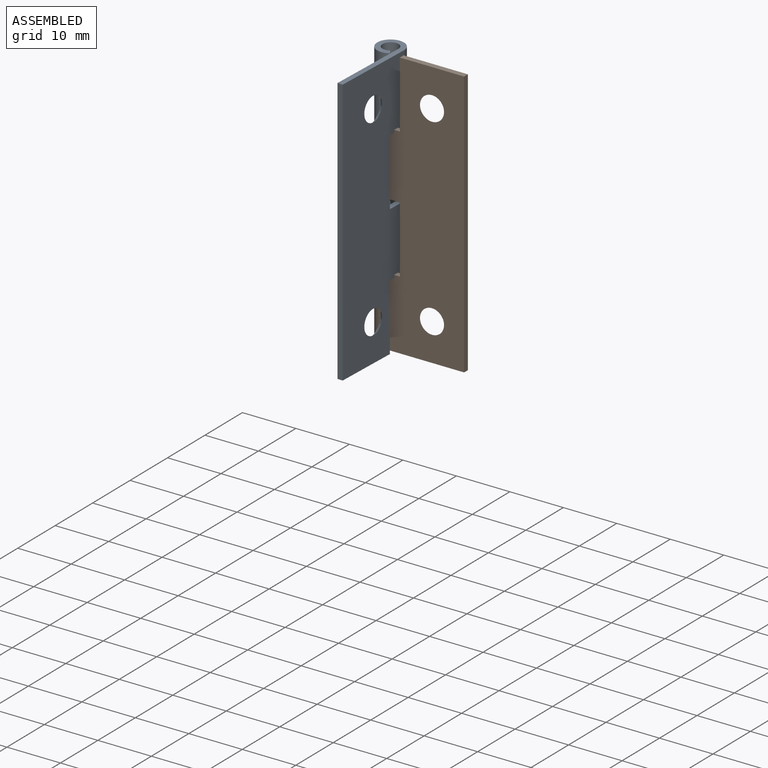
[diagram: assembled view]
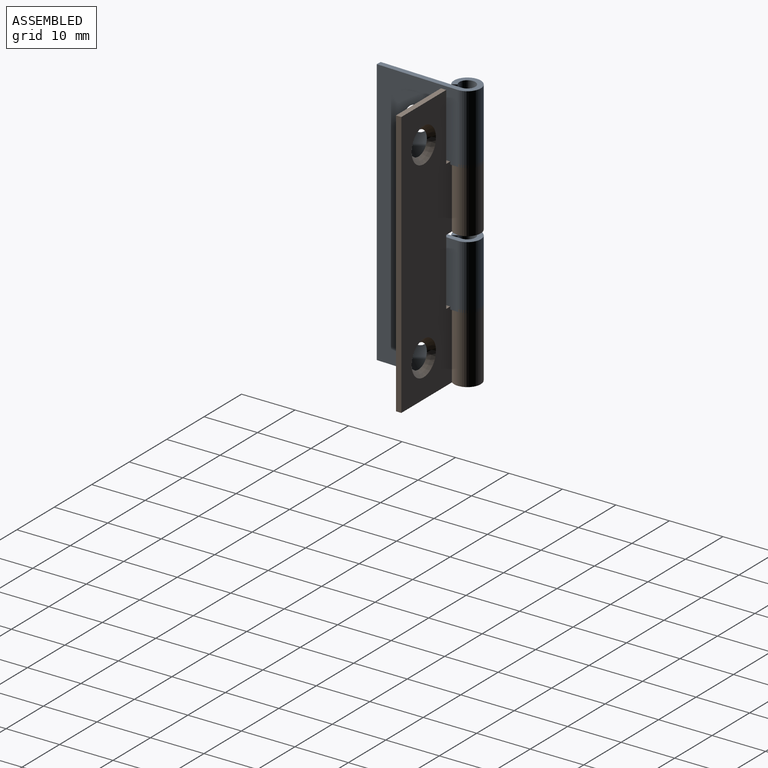
[diagram: assembled view, second angle]
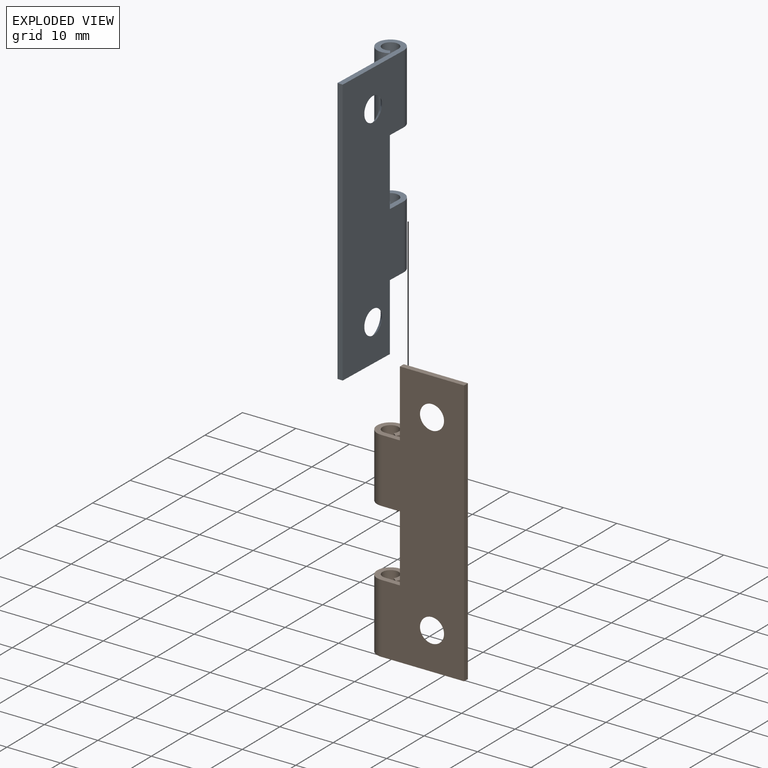
[diagram: exploded view]
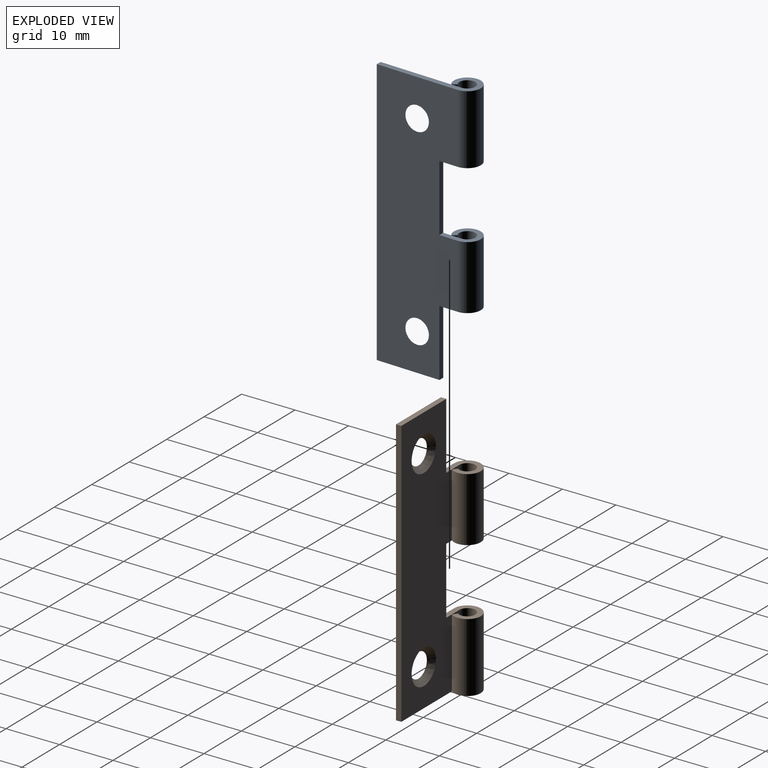
[diagram: exploded view, second angle]
ASSEMBLY  parts=2 mates=2
PART A: 18 faces, bbox 18x5x50 mm
  f0: cylinder r=1.5mm len=12mm, axis (0,0,-1), area 96.2mm2, adj f2,f7,f13,f14
  f1: cylinder r=1.5mm len=13mm, axis (0,0,-1), area 104.2mm2, adj f3,f7,f9,f11
  f2: plane 12x0.81mm, normal (-0.59,0.81,0), area 12mm2, adj f0,f4,f13,f14
  f3: plane 13x0.81mm, normal (-0.59,0.81,0), area 13mm2, adj f1,f5,f9,f11
  f4: cylinder r=2.5mm len=12mm, axis (0,0,-1), area 160.4mm2, adj f2,f6,f13,f14
  f5: cylinder r=2.5mm len=13mm, axis (0,0,-1), area 173.7mm2, adj f3,f6,f9,f11
  f6: plane 50x15.5mm, normal (0,1,0), area 655.7mm2, adj f4,f5,f8,f9,f10,f11,f12,f13
  f7: plane 50x15.5mm, normal (0,-1,0), area 621.1mm2, adj f0,f1,f8,f9,f10,f11,f12,f13
  f8: plane 50x1mm, normal (1,0,0), area 50mm2, adj f6,f7,f9,f10
  f9: plane 18x5mm, normal (0,0,1), area 26.2mm2, adj f1,f3,f5,f6,f7,f8
  f10: plane 12x1mm, normal (0,0,-1), area 12mm2, adj f6,f7,f8,f15
  f11: plane 6x5mm, normal (0,0,-1), area 14.2mm2, adj f1,f3,f5,f6,f7,f12
  f12: plane 12.5x1mm, normal (-1,0,0), area 12.5mm2, adj f6,f7,f11,f13
  f13: plane 6x5mm, normal (0,0,1), area 14.2mm2, adj f0,f2,f4,f6,f7,f12
  f14: plane 6x5mm, normal (0,0,-1), area 14.2mm2, adj f0,f2,f4,f6,f7,f15
  f15: plane 12.5x1mm, normal (-1,0,0), area 12.5mm2, adj f6,f7,f10,f14
  f16: cone r=2.25mm half-angle=45deg, axis (0,-1,0), area 24.4mm2, adj f6,f7
  f17: cone r=2.25mm half-angle=45deg, axis (0,-1,0), area 24.4mm2, adj f6,f7
PART B: 18 faces, bbox 18x5x50 mm
  f0: cylinder r=1.5mm len=12mm, axis (0,0,-1), area 96.2mm2, adj f1,f4,f11,f14
  f1: plane 12x0.81mm, normal (-0.59,-0.81,0), area 12mm2, adj f0,f2,f11,f14
  f2: cylinder r=2.5mm len=12mm, axis (0,0,-1), area 160.4mm2, adj f1,f3,f11,f14
  f3: plane 50x15.5mm, normal (0,-1,0), area 655.7mm2, adj f2,f7,f8,f9,f10,f11,f12,f13
  f4: plane 50x15.5mm, normal (0,1,0), area 621.1mm2, adj f0,f5,f8,f9,f10,f11,f12,f13
  f5: cylinder r=1.5mm len=13mm, axis (0,0,-1), area 104.2mm2, adj f4,f6,f10,f13
  f6: plane 13x0.81mm, normal (-0.59,-0.81,0), area 13mm2, adj f5,f7,f10,f13
  f7: cylinder r=2.5mm len=13mm, axis (0,0,-1), area 173.7mm2, adj f3,f6,f10,f13
  f8: plane 50x1mm, normal (1,0,0), area 50mm2, adj f3,f4,f9,f10
  f9: plane 12x1mm, normal (0,0,1), area 12mm2, adj f3,f4,f8,f15
  f10: plane 18x5mm, normal (0,0,-1), area 26.2mm2, adj f3,f4,f5,f6,f7,f8
  f11: plane 6x5mm, normal (0,0,-1), area 14.2mm2, adj f0,f1,f2,f3,f4,f12
  f12: plane 12.5x1mm, normal (-1,0,0), area 12.5mm2, adj f3,f4,f11,f13
  f13: plane 6x5mm, normal (0,0,1), area 14.2mm2, adj f3,f4,f5,f6,f7,f12
  f14: plane 6x5mm, normal (0,0,1), area 14.2mm2, adj f0,f1,f2,f3,f4,f15
  f15: plane 12.5x1mm, normal (-1,0,0), area 12.5mm2, adj f3,f4,f9,f14
  f16: cone r=2.25mm half-angle=45deg, axis (0,1,0), area 24.4mm2, adj f3,f4
  f17: cone r=2.25mm half-angle=45deg, axis (0,1,0), area 24.4mm2, adj f3,f4
PLACE A rot(axis=(0,0,-1),92deg) t=(-5.78,40.54,-22.65)mm
PLACE B t=(-10.78,40.71,-22.65)mm
MATE cylindrical A.f4 <-> B.f0  axis (0,0,-1) through (-10.78,40.71,27.35)mm
MATE planar A.f10 <-> B.f10  axis (0,0,-1) through (-9.11,31.15,-22.65)mm
